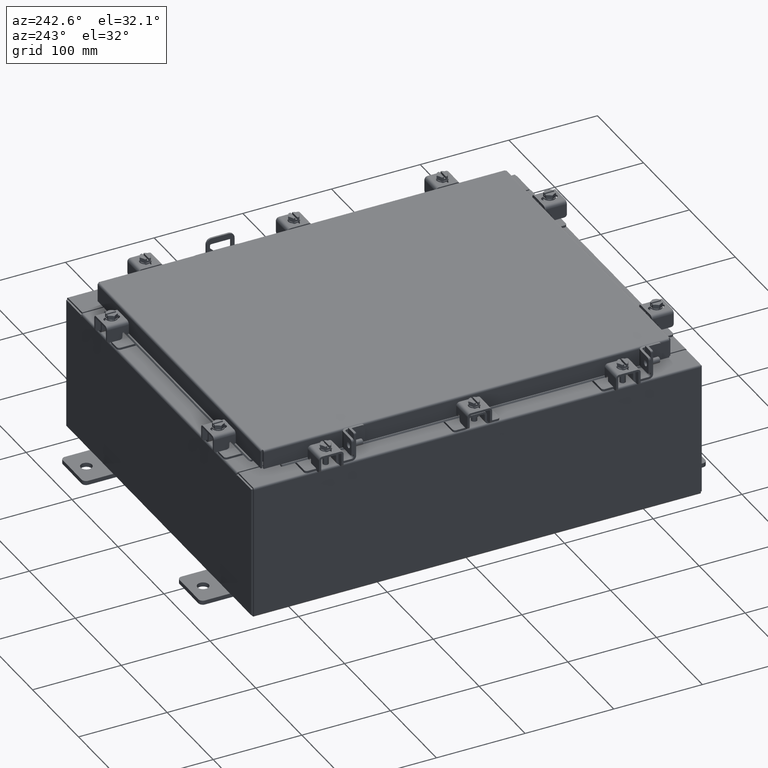
[diagram: clean part render]
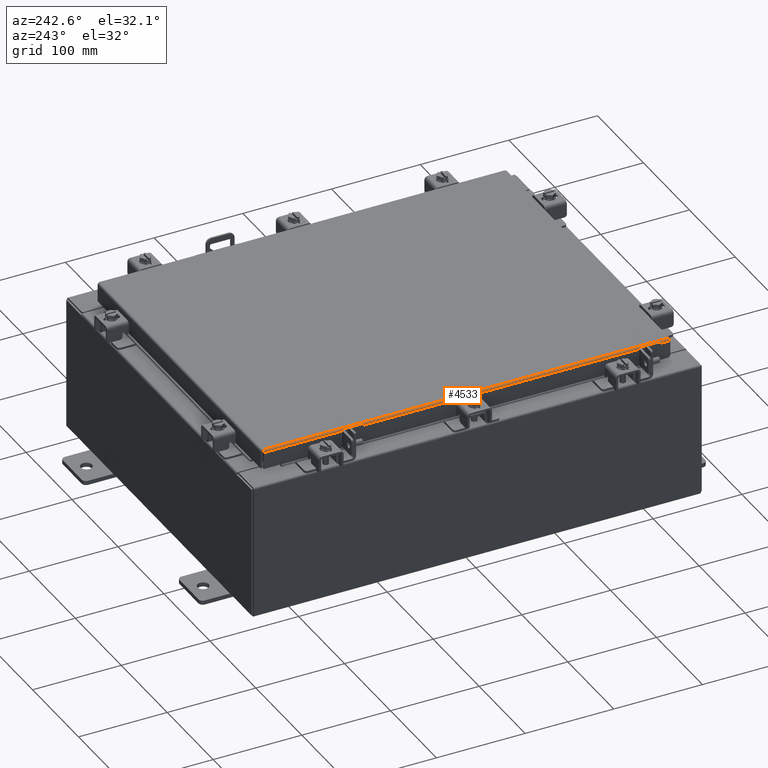
[diagram: same view with one face highlighted and labeled with its STEP entity id]
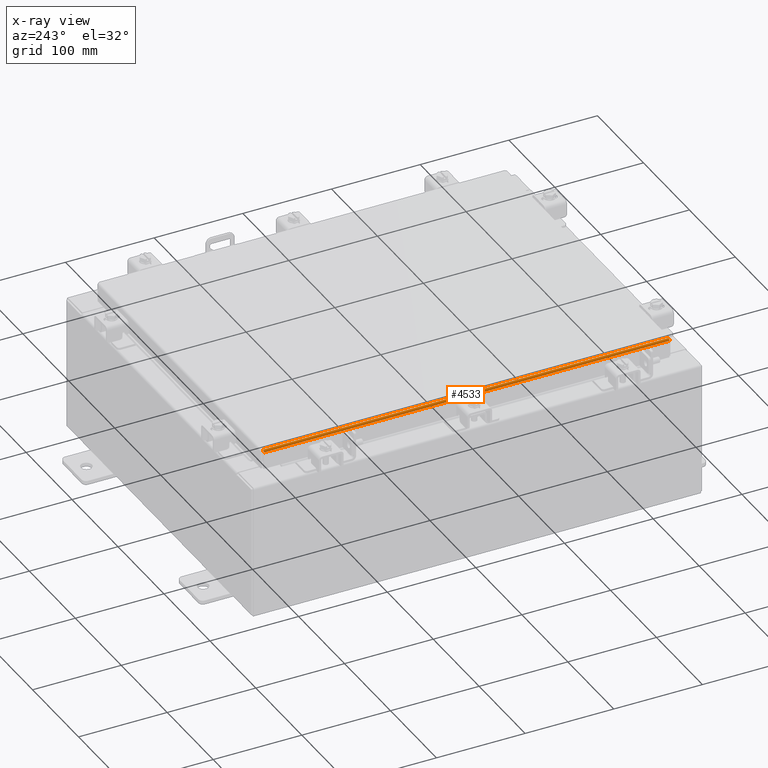
[diagram: x-ray of the same camera — body ghosted, the highlighted face saturated]
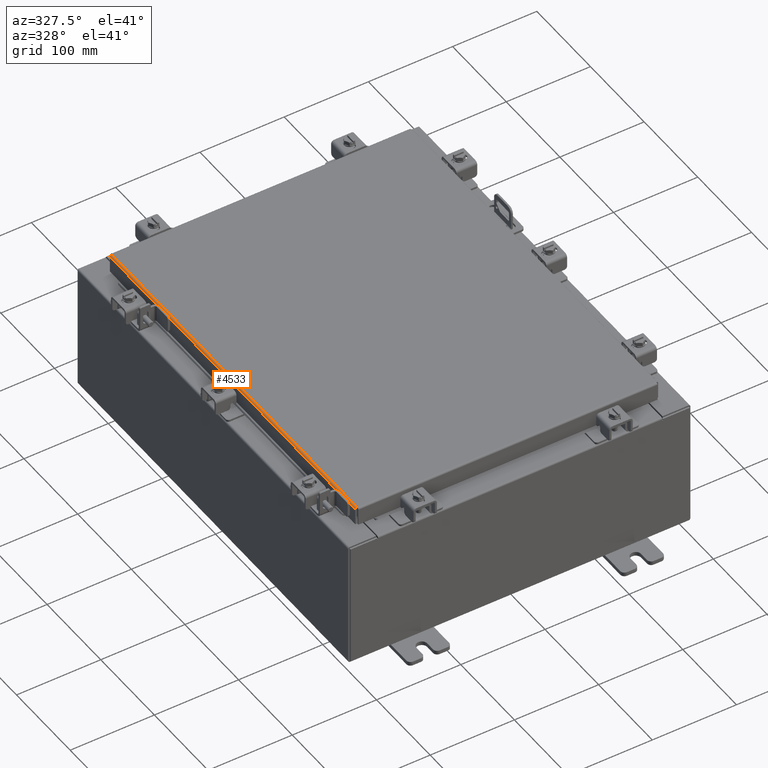
[diagram: same view with one face highlighted and labeled with its STEP entity id]
A machine part, auxiliary view. The second image highlights one B-rep face of the part: STEP entity #4533.
The next image is the same camera in x-ray: the body ghosted, the highlighted face saturated — about 0% of this face is hidden behind the body in this view.
A second angle (auxiliary view) of the same face is appended — the face is thin or edge-on in the first view.
In plain terms, the highlighted cylindrical surface (edge-blend (fillet) strip) has radius 2.2276 mm, axis along (0, 1, 0).
Its self-contained STEP definition (entity closure, byte-faithful):
#126 = CARTESIAN_POINT ( 'NONE',  ( -7.044195747341803800, -9.005824110156782000, -0.01756921792167973100 ) ) ;
#410 = ORIENTED_EDGE ( 'NONE', *, *, #18996, .F. ) ;
#770 = B_SPLINE_CURVE_WITH_KNOTS ( 'NONE', 3,
 ( #17446, #5295, #20944, #10531, #126, #12290, #1877, #14025, #3632, #15763 ),
 .UNSPECIFIED., .F., .F.,
 ( 4, 2, 2, 2, 4 ),
 ( 0.0000000000000000000, 0.2500000000000000000, 0.5000000000000000000, 0.7500000000000000000, 1.000000000000000000 ),
 .UNSPECIFIED. ) ;
#934 = EDGE_CURVE ( 'NONE', #1121, #8270, #10140, .T. ) ;
#1033 = DIRECTION ( 'NONE',  ( -0.0000000000000000000, 1.000000000000000000, -0.0000000000000000000 ) ) ;
#1121 = VERTEX_POINT ( 'NONE', #13700 ) ;
#1552 = VECTOR ( 'NONE', #17715, 39.37007874015748100 ) ;
#1589 = CARTESIAN_POINT ( 'NONE',  ( -7.034467384578532800, 9.005919288125420900, -0.01106893374133172600 ) ) ;
#1667 = CARTESIAN_POINT ( 'NONE',  ( -6.990300000000003100, 9.006299999999996000, 0.0000000000000000000 ) ) ;
#1877 = CARTESIAN_POINT ( 'NONE',  ( -7.066931066258671700, -9.005538576250849300, -0.04353261542147220100 ) ) ;
#3632 = CARTESIAN_POINT ( 'NONE',  ( -7.078000000000003800, -9.005253042344914900, -0.07622009684500735700 ) ) ;
#4102 = CYLINDRICAL_SURFACE ( 'NONE', #6015, 0.08770000000000026400 ) ;
#4533 = ADVANCED_FACE ( 'NONE', ( #13336 ), #4102, .T. ) ;
#4947 = ORIENTED_EDGE ( 'NONE', *, *, #22463, .F. ) ;
#5295 = CARTESIAN_POINT ( 'NONE',  ( -7.001779903154997900, -9.006204822031358900, -1.698734580044647500E-016 ) ) ;
#6015 = AXIS2_PLACEMENT_3D ( 'NONE', #13184, #1033, #14925 ) ;
#6656 = CARTESIAN_POINT ( 'NONE',  ( -6.990300000000003100, 9.006299999999996000, 0.0000000000000000000 ) ) ;
#6722 = LINE ( 'NONE', #12398, #1552 ) ;
#6939 = CARTESIAN_POINT ( 'NONE',  ( -6.990300000000003100, 9.006299999999996000, 0.0000000000000000000 ) ) ;
#7166 = CARTESIAN_POINT ( 'NONE',  ( -7.060430782078324100, 9.005633754219486400, -0.03380425265820005700 ) ) ;
#8004 = CARTESIAN_POINT ( 'NONE',  ( -7.001779903154995200, 9.006204822031353500, -1.695399804661757400E-016 ) ) ;
#8103 = ORIENTED_EDGE ( 'NONE', *, *, #12261, .T. ) ;
#8270 = VERTEX_POINT ( 'NONE', #1667 ) ;
#9508 = CARTESIAN_POINT ( 'NONE',  ( -7.044195747341802000, 9.005824110156773100, -0.01756921792167973100 ) ) ;
#10140 = B_SPLINE_CURVE_WITH_KNOTS ( 'NONE', 3,
 ( #17506, #21003, #10196, #17116, #7166, #9508, #1589, #17574, #8004, #6939 ),
 .UNSPECIFIED., .F., .F.,
 ( 4, 2, 2, 2, 4 ),
 ( 0.0000000000000000000, 0.2500000000000000000, 0.5000000000000000000, 0.7500000000000000000, 1.000000000000000000 ),
 .UNSPECIFIED. ) ;
#10196 = CARTESIAN_POINT ( 'NONE',  ( -7.075717403743814400, 9.005348220313555500, -0.06474471054169118900 ) ) ;
#10531 = CARTESIAN_POINT ( 'NONE',  ( -7.034467384578529300, -9.005919288125422600, -0.01106893374133172600 ) ) ;
#12046 = VERTEX_POINT ( 'NONE', #15351 ) ;
#12261 = EDGE_CURVE ( 'NONE', #1121, #17761, #6722, .T. ) ;
#12290 = CARTESIAN_POINT ( 'NONE',  ( -7.060430782078325000, -9.005633754219493500, -0.03380425265820005700 ) ) ;
#12398 = CARTESIAN_POINT ( 'NONE',  ( -7.078000000000003800, -9.094000000000003000, -0.08770000000000026400 ) ) ;
#13184 = CARTESIAN_POINT ( 'NONE',  ( -6.990300000000003100, 9.006299999999996000, -0.08770000000000026400 ) ) ;
#13336 = FACE_OUTER_BOUND ( 'NONE', #22116, .T. ) ;
#13700 = CARTESIAN_POINT ( 'NONE',  ( -7.078000000000003800, 9.005157864376265300, -0.08770000000000026400 ) ) ;
#14025 = CARTESIAN_POINT ( 'NONE',  ( -7.075717403743816200, -9.005348220313559100, -0.06474471054169118900 ) ) ;
#14925 = DIRECTION ( 'NONE',  ( -1.000000000000000000, 0.0000000000000000000, 2.725618009642215600E-015 ) ) ;
#15351 = CARTESIAN_POINT ( 'NONE',  ( -6.990300000000003100, -9.006300000000003100, 0.0000000000000000000 ) ) ;
#15763 = CARTESIAN_POINT ( 'NONE',  ( -7.078000000000003800, -9.005157864376270600, -0.08770000000000026400 ) ) ;
#16265 = VECTOR ( 'NONE', #17051, 39.37007874015748100 ) ;
#17051 = DIRECTION ( 'NONE',  ( 0.0000000000000000000, -1.000000000000000000, 0.0000000000000000000 ) ) ;
#17116 = CARTESIAN_POINT ( 'NONE',  ( -7.066931066258670000, 9.005538576250842200, -0.04353261542147219400 ) ) ;
#17446 = CARTESIAN_POINT ( 'NONE',  ( -6.990300000000003100, -9.006300000000003100, 0.0000000000000000000 ) ) ;
#17506 = CARTESIAN_POINT ( 'NONE',  ( -7.078000000000003800, 9.005157864376265300, -0.08770000000000026400 ) ) ;
#17574 = CARTESIAN_POINT ( 'NONE',  ( -7.013255289458314200, 9.006109644062709300, -0.002282596256188889100 ) ) ;
#17715 = DIRECTION ( 'NONE',  ( 3.387180227794633400E-031, -1.000000000000000000, -9.232666117091638000E-046 ) ) ;
#17761 = VERTEX_POINT ( 'NONE', #18978 ) ;
#18978 = CARTESIAN_POINT ( 'NONE',  ( -7.078000000000003800, -9.005157864376270600, -0.08770000000000026400 ) ) ;
#18996 = EDGE_CURVE ( 'NONE', #8270, #12046, #21461, .T. ) ;
#19061 = ORIENTED_EDGE ( 'NONE', *, *, #934, .F. ) ;
#20944 = CARTESIAN_POINT ( 'NONE',  ( -7.013255289458315100, -9.006109644062714600, -0.002282596256188889100 ) ) ;
#21003 = CARTESIAN_POINT ( 'NONE',  ( -7.078000000000001200, 9.005253042344909500, -0.07622009684500732900 ) ) ;
#21461 = LINE ( 'NONE', #6656, #16265 ) ;
#22116 = EDGE_LOOP ( 'NONE', ( #410, #19061, #8103, #4947 ) ) ;
#22463 = EDGE_CURVE ( 'NONE', #12046, #17761, #770, .T. ) ;